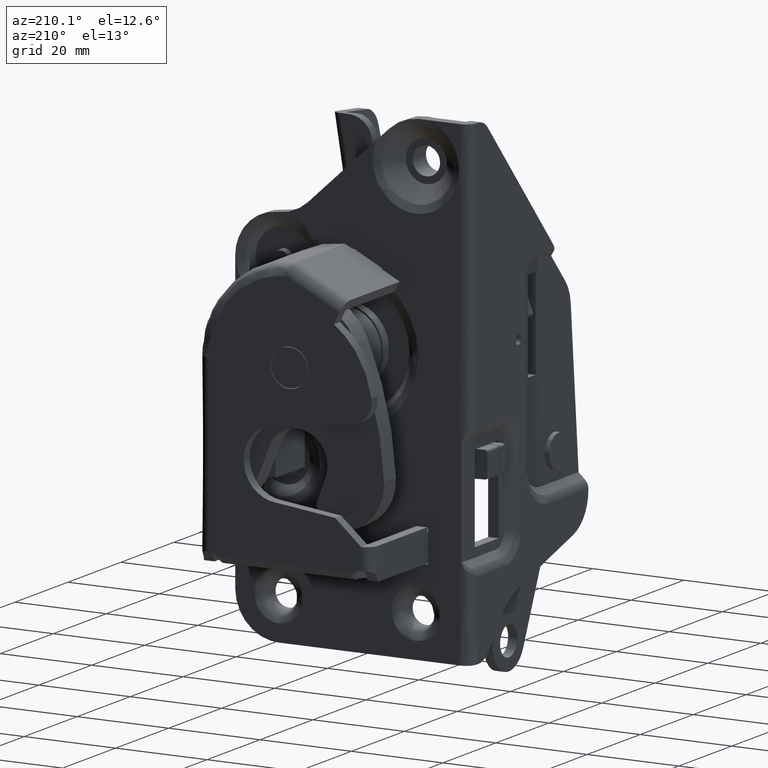
[diagram: clean part render]
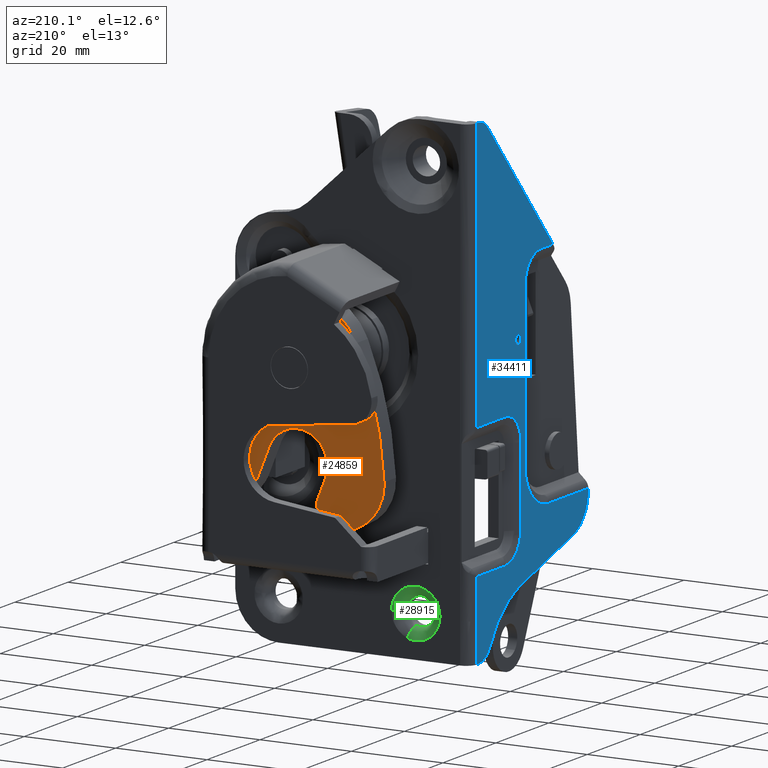
[diagram: same view with three faces highlighted in distinct colors, each labeled with its STEP entity id]
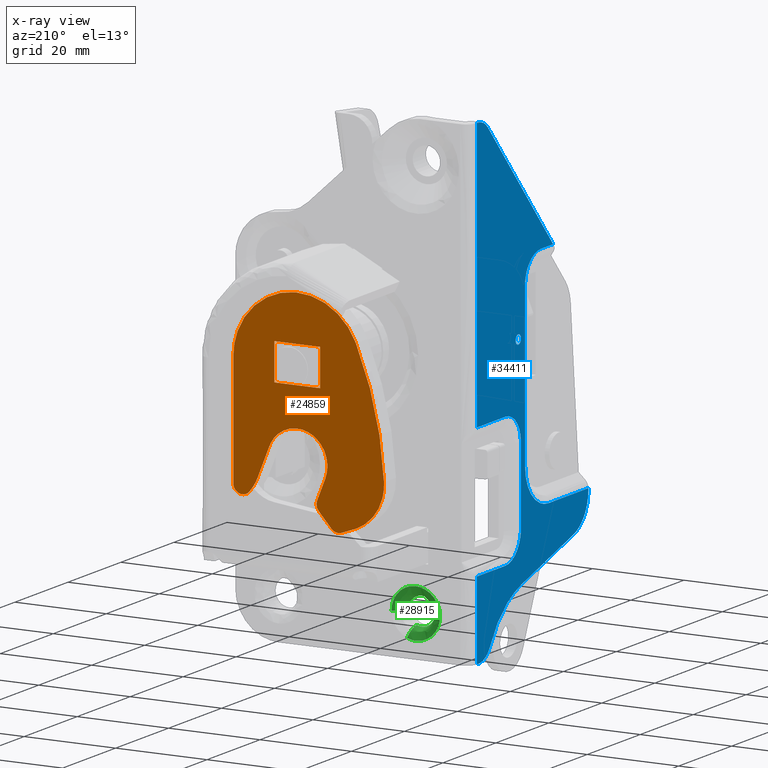
[diagram: x-ray of the same camera — body ghosted, the three highlighted faces saturated]
A machine part, auxiliary view with three faces highlighted in distinct colors.
The next image is the same camera in x-ray (body ghosted, the three faces saturated) — at least one of them is partly hidden behind the body in this view.
Their STEP definitions:

[orange] entity #24859 — the highlighted face is a freeform B-spline surface patch.
#24431=CARTESIAN_POINT('',(32.500000000000000,53.0,20.0));
#24432=VERTEX_POINT('',#24431);
#24433=CARTESIAN_POINT('',(22.499999999999702,53.0,20.0));
#24434=VERTEX_POINT('',#24433);
#24435=CARTESIAN_POINT('',(32.500000000000000,53.0,20.0));
#24436=CARTESIAN_POINT('',(22.499999999999702,53.0,20.0));
#24437=QUASI_UNIFORM_CURVE('',1,(#24435,#24436),.UNSPECIFIED.,.F.,.U.);
#24438=EDGE_CURVE('',#24432,#24434,#24437,.T.);
#24466=CARTESIAN_POINT('',(32.500000000000000,53.0,28.0));
#24467=VERTEX_POINT('',#24466);
#24468=CARTESIAN_POINT('',(32.500000000000000,53.0,28.0));
#24469=CARTESIAN_POINT('',(32.500000000000000,53.0,20.0));
#24470=QUASI_UNIFORM_CURVE('',1,(#24468,#24469),.UNSPECIFIED.,.F.,.U.);
#24471=EDGE_CURVE('',#24467,#24432,#24470,.T.);
#24488=CARTESIAN_POINT('',(22.499999999999702,53.0,28.0));
#24489=VERTEX_POINT('',#24488);
#24490=CARTESIAN_POINT('',(22.499999999999702,53.0,28.0));
#24491=CARTESIAN_POINT('',(32.500000000000000,53.0,28.0));
#24492=QUASI_UNIFORM_CURVE('',1,(#24490,#24491),.UNSPECIFIED.,.F.,.U.);
#24493=EDGE_CURVE('',#24489,#24467,#24492,.T.);
#24517=CARTESIAN_POINT('',(22.499999999999702,53.0,20.0));
#24518=CARTESIAN_POINT('',(22.499999999999702,53.0,28.0));
#24519=QUASI_UNIFORM_CURVE('',1,(#24517,#24518),.UNSPECIFIED.,.F.,.U.);
#24520=EDGE_CURVE('',#24434,#24489,#24519,.T.);
#24676=CARTESIAN_POINT('',(43.148309573504037,53.0,-9.950300449224912));
#24677=CARTESIAN_POINT('',(6.851996135934078,53.0,-9.950300449224912));
#24678=CARTESIAN_POINT('',(43.148309573504037,53.0,40.276940169294598));
#24679=CARTESIAN_POINT('',(6.851996135934078,53.0,40.276940169294598));
#24680=B_SPLINE_SURFACE_WITH_KNOTS('',1,1,((#24676,#24678),(#24677,#24679)),.UNSPECIFIED.,.F.,.F.,.U.,(2,2),(2,2),(0.0,36.296313437569957),(0.0,50.227240618519509),.UNSPECIFIED.);
#24681=CARTESIAN_POINT('',(41.499751967376163,53.0,-0.503891432037531));
#24682=VERTEX_POINT('',#24681);
#24683=CARTESIAN_POINT('',(38.012937578485698,53.0,-1.837874537813335));
#24684=VERTEX_POINT('',#24683);
#24685=CARTESIAN_POINT('',(41.499751967376163,53.0,-0.503891432037531));
#24686=CARTESIAN_POINT('',(41.499485573628490,52.999999999999957,-0.704487366035241));
#24687=CARTESIAN_POINT('',(41.439750642586603,53.000000000000142,-1.092992322696456));
#24688=CARTESIAN_POINT('',(41.222326875520331,52.999999999999822,-1.550456856910513));
#24689=CARTESIAN_POINT('',(40.941174896874173,53.000000000000242,-1.905663287531373));
#24690=CARTESIAN_POINT('',(40.604572066961190,52.999999999999780,-2.191502706318995));
#24691=CARTESIAN_POINT('',(40.185183905683537,52.999999999999950,-2.398989659552805));
#24692=CARTESIAN_POINT('',(39.767371692446353,53.000000000000021,-2.494284344882381));
#24693=CARTESIAN_POINT('',(39.352407930725533,52.999999999999972,-2.509357576633300));
#24694=CARTESIAN_POINT('',(38.879339919959101,53.000000000000099,-2.427975108108752));
#24695=CARTESIAN_POINT('',(38.398285884322263,52.999999999999730,-2.199500541805311));
#24696=CARTESIAN_POINT('',(38.121915365240682,53.000000000000043,-1.959065389087017));
#24697=CARTESIAN_POINT('',(38.012937578485698,53.0,-1.837874537813335));
#24698=B_SPLINE_CURVE_WITH_KNOTS('',3,(#24685,#24686,#24687,#24688,#24689,#24690,#24691,#24692,#24693,#24694,#24695,#24696,#24697),.UNSPECIFIED.,.F.,.U.,(4,1,1,1,1,1,1,1,1,1,4),(0.000000489607355,0.601768107266643,1.165998231107237,1.504535542936363,1.955915029768040,2.482399046862219,2.896179330713022,3.234688506768121,3.723678971490753,4.325490028354812,4.814446101880039),.UNSPECIFIED.);
#24699=EDGE_CURVE('',#24682,#24684,#24698,.T.);
#24700=ORIENTED_EDGE('',*,*,#24699,.T.);
#24701=CARTESIAN_POINT('',(36.168630926051200,53.0,1.122857875847806));
#24702=VERTEX_POINT('',#24701);
#24703=CARTESIAN_POINT('',(38.012937578485698,53.0,-1.837874537813335));
#24704=CARTESIAN_POINT('',(37.231027742455510,53.000000000000057,-0.969183534563052));
#24705=CARTESIAN_POINT('',(36.603341346630117,52.999999999999801,0.037890999771157));
#24706=CARTESIAN_POINT('',(36.168630926051200,53.0,1.122857875847806));
#24707=B_SPLINE_CURVE_WITH_KNOTS('',3,(#24703,#24704,#24705,#24706),.UNSPECIFIED.,.F.,.U.,(4,4),(4.512649E-009,3.506160840604002),.UNSPECIFIED.);
#24708=EDGE_CURVE('',#24684,#24702,#24707,.T.);
#24709=ORIENTED_EDGE('',*,*,#24708,.T.);
#24710=CARTESIAN_POINT('',(33.625128187699097,53.0,7.459270188886670));
#24711=VERTEX_POINT('',#24710);
#24712=CARTESIAN_POINT('',(33.625128187699097,53.0,7.459270188886670));
#24713=CARTESIAN_POINT('',(36.168630926051200,53.0,1.122857875847806));
#24714=QUASI_UNIFORM_CURVE('',1,(#24712,#24713),.UNSPECIFIED.,.F.,.U.);
#24715=EDGE_CURVE('',#24711,#24702,#24714,.T.);
#24716=ORIENTED_EDGE('',*,*,#24715,.F.);
#24717=CARTESIAN_POINT('',(25.040095848606480,53.0,11.125535285069830));
#24718=VERTEX_POINT('',#24717);
#24719=CARTESIAN_POINT('',(25.040095848606480,53.0,11.125535285069830));
#24720=CARTESIAN_POINT('',(25.440995803666230,53.000000000000092,11.286582299308000));
#24721=CARTESIAN_POINT('',(26.274562117857890,52.999999999999922,11.529521251240389));
#24722=CARTESIAN_POINT('',(27.490884343855839,52.999999999999979,11.636008932155310));
#24723=CARTESIAN_POINT('',(28.596951055041561,53.000000000000021,11.535410437828890));
#24724=CARTESIAN_POINT('',(29.805569492465441,53.000000000000298,11.234560309063410));
#24725=CARTESIAN_POINT('',(30.984300826595639,52.999999999999453,10.670214868728699));
#24726=CARTESIAN_POINT('',(32.027785127897829,52.999999999999837,9.847553906115428));
#24727=CARTESIAN_POINT('',(32.932549935151037,52.999999999999829,8.839650501675141));
#24728=CARTESIAN_POINT('',(33.404025960335957,53.000000000000327,8.010667577006585));
#24729=CARTESIAN_POINT('',(33.625128187699097,53.0,7.459270188886670));
#24730=B_SPLINE_CURVE_WITH_KNOTS('',3,(#24719,#24720,#24721,#24722,#24723,#24724,#24725,#24726,#24727,#24728,#24729),.UNSPECIFIED.,.F.,.U.,(4,1,1,1,1,1,1,1,4),(0.000000125248302,1.296110581487044,2.592240387477370,3.645357230007305,4.617434418661775,6.318578690973805,7.533691527198394,8.586809272242412,10.368958025304631),.UNSPECIFIED.);
#24731=EDGE_CURVE('',#24718,#24711,#24730,.T.);
#24732=ORIENTED_EDGE('',*,*,#24731,.F.);
#24733=CARTESIAN_POINT('',(21.375000000003649,53.0,2.539999999990745));
#24734=VERTEX_POINT('',#24733);
#24735=CARTESIAN_POINT('',(21.375000000003649,53.0,2.539999999990745));
#24736=CARTESIAN_POINT('',(21.213893037561778,53.000000000000021,2.940877183703295));
#24737=CARTESIAN_POINT('',(21.001267633021602,52.999999999999957,3.670220990804810));
#24738=CARTESIAN_POINT('',(20.865038241439638,53.000000000000078,4.881004941470926));
#24739=CARTESIAN_POINT('',(20.934864274245950,53.000000000000007,5.937527794784620));
#24740=CARTESIAN_POINT('',(21.232909773589519,52.999999999999687,7.201447985714461));
#24741=CARTESIAN_POINT('',(21.768052518944248,53.000000000000533,8.393709439467564));
#24742=CARTESIAN_POINT('',(22.710866429035871,52.999999999999318,9.620930553057962));
#24743=CARTESIAN_POINT('',(23.796851192857140,53.000000000000881,10.526005769052540));
#24744=CARTESIAN_POINT('',(24.639168184732188,52.999999999998963,10.964579548441071));
#24745=CARTESIAN_POINT('',(25.040095848606480,53.0,11.125535285069830));
#24746=B_SPLINE_CURVE_WITH_KNOTS('',3,(#24735,#24736,#24737,#24738,#24739,#24740,#24741,#24742,#24743,#24744,#24745),.UNSPECIFIED.,.F.,.U.,(4,1,1,1,1,1,1,1,4),(0.000000125232685,1.296111184565200,2.268204998380970,3.645358926280559,4.455448815950675,6.156540773185223,7.533695032780052,9.072865582662393,10.368962850204900),.UNSPECIFIED.);
#24747=EDGE_CURVE('',#24734,#24718,#24746,.T.);
#24748=ORIENTED_EDGE('',*,*,#24747,.F.);
#24749=CARTESIAN_POINT('',(23.136165442745050,53.0,-1.845411962769285));
#24750=VERTEX_POINT('',#24749);
#24751=CARTESIAN_POINT('',(23.136165442745050,53.0,-1.845411962769285));
#24752=CARTESIAN_POINT('',(21.375000000003649,53.0,2.539999999990745));
#24753=QUASI_UNIFORM_CURVE('',1,(#24751,#24752),.UNSPECIFIED.,.F.,.U.);
#24754=EDGE_CURVE('',#24750,#24734,#24753,.T.);
#24755=ORIENTED_EDGE('',*,*,#24754,.F.);
#24756=CARTESIAN_POINT('',(22.768235455744851,53.0,-3.927105898154995));
#24757=VERTEX_POINT('',#24756);
#24758=CARTESIAN_POINT('',(23.136165442745050,53.0,-1.845411962769285));
#24759=CARTESIAN_POINT('',(23.201043884159500,53.000000000000043,-2.006867714207879));
#24760=CARTESIAN_POINT('',(23.300005418801600,52.999999999999680,-2.392171068693199));
#24761=CARTESIAN_POINT('',(23.274991972741301,53.000000000000853,-2.956045741223040));
#24762=CARTESIAN_POINT('',(23.088447858835838,52.999999999998721,-3.497506132747017));
#24763=CARTESIAN_POINT('',(22.892310642823499,53.000000000000789,-3.789055009304270));
#24764=CARTESIAN_POINT('',(22.768235455744851,53.0,-3.927105898154995));
#24765=B_SPLINE_CURVE_WITH_KNOTS('',3,(#24758,#24759,#24760,#24761,#24762,#24763,#24764),.UNSPECIFIED.,.F.,.U.,(4,1,1,1,4),(0.000000102084377,0.522024654042086,1.183245412588157,1.670482768252887,2.227310323642777),.UNSPECIFIED.);
#24766=EDGE_CURVE('',#24750,#24757,#24765,.T.);
#24767=ORIENTED_EDGE('',*,*,#24766,.T.);
#24768=CARTESIAN_POINT('',(20.003297433442452,53.0,-7.005789945134710));
#24769=VERTEX_POINT('',#24768);
#24770=CARTESIAN_POINT('',(20.003297433442452,53.0,-7.005789945134710));
#24771=CARTESIAN_POINT('',(22.768235455744851,53.0,-3.927105898154995));
#24772=QUASI_UNIFORM_CURVE('',1,(#24770,#24771),.UNSPECIFIED.,.F.,.U.);
#24773=EDGE_CURVE('',#24769,#24757,#24772,.T.);
#24774=ORIENTED_EDGE('',*,*,#24773,.F.);
#24775=CARTESIAN_POINT('',(17.935639190464251,53.0,-7.583587546461810));
#24776=VERTEX_POINT('',#24775);
#24777=CARTESIAN_POINT('',(20.003297433442452,53.0,-7.005789945134710));
#24778=CARTESIAN_POINT('',(19.853544623207110,53.000000000000142,-7.172740057526837));
#24779=CARTESIAN_POINT('',(19.497106288526670,52.999999999999979,-7.455333931943819));
#24780=CARTESIAN_POINT('',(18.773490528913740,52.999999999999901,-7.707036849787813));
#24781=CARTESIAN_POINT('',(18.229275571251939,53.000000000000142,-7.673024194674612));
#24782=CARTESIAN_POINT('',(17.935639190464251,53.0,-7.583587546461810));
#24783=B_SPLINE_CURVE_WITH_KNOTS('',3,(#24777,#24778,#24779,#24780,#24781,#24782),.UNSPECIFIED.,.F.,.U.,(4,1,1,4),(0.000000111237388,0.672783724510564,1.345535506008562,2.266200156903591),.UNSPECIFIED.);
#24784=EDGE_CURVE('',#24769,#24776,#24783,.T.);
#24785=ORIENTED_EDGE('',*,*,#24784,.T.);
#24786=CARTESIAN_POINT('',(14.586906549150079,53.0,-6.368602495498849));
#24787=VERTEX_POINT('',#24786);
#24788=CARTESIAN_POINT('',(17.935639190464251,53.0,-7.583587546461810));
#24789=CARTESIAN_POINT('',(16.798606411638779,52.999999999999993,-7.239276718220203));
#24790=CARTESIAN_POINT('',(15.680187863347911,53.000000000000028,-6.833498811009934));
#24791=CARTESIAN_POINT('',(14.586906549150079,53.0,-6.368602495498849));
#24792=B_SPLINE_CURVE_WITH_KNOTS('',3,(#24788,#24789,#24790,#24791),.UNSPECIFIED.,.F.,.U.,(4,4),(2.796225E-010,3.564069262987653),.UNSPECIFIED.);
#24793=EDGE_CURVE('',#24776,#24787,#24792,.T.);
#24794=ORIENTED_EDGE('',*,*,#24793,.T.);
#24795=CARTESIAN_POINT('',(8.512113658407371,53.0,3.326774216906520));
#24796=VERTEX_POINT('',#24795);
#24797=CARTESIAN_POINT('',(14.586906549150079,53.0,-6.368602495498849));
#24798=CARTESIAN_POINT('',(13.827856150766889,52.999999999999908,-6.046064370153336));
#24799=CARTESIAN_POINT('',(12.473351324495500,53.000000000000099,-5.259766862318491));
#24800=CARTESIAN_POINT('',(10.968370419511629,53.000000000000142,-3.832486363659306));
#24801=CARTESIAN_POINT('',(9.830887201970317,52.999999999999623,-2.260280396800523));
#24802=CARTESIAN_POINT('',(9.019888740532730,53.000000000000327,-0.562257886658247));
#24803=CARTESIAN_POINT('',(8.540769916708145,52.999999999999517,1.388110949948139));
#24804=CARTESIAN_POINT('',(8.480783977232052,53.000000000000732,2.693152962511076));
#24805=CARTESIAN_POINT('',(8.512113658407371,53.0,3.326774216906520));
#24806=B_SPLINE_CURVE_WITH_KNOTS('',3,(#24797,#24798,#24799,#24800,#24801,#24802,#24803,#24804,#24805),.UNSPECIFIED.,.F.,.U.,(4,1,1,1,1,1,4),(0.000000063146867,2.474157980997768,4.662856866463048,6.185366897034751,8.278907017000208,10.277292042997731,12.180476977204901),.UNSPECIFIED.);
#24807=EDGE_CURVE('',#24787,#24796,#24806,.T.);
#24808=ORIENTED_EDGE('',*,*,#24807,.T.);
#24809=CARTESIAN_POINT('',(14.665646308671921,53.0,29.592664486145850));
#24810=VERTEX_POINT('',#24809);
#24811=CARTESIAN_POINT('',(8.512113658407371,53.0,3.326774216906520));
#24812=CARTESIAN_POINT('',(8.668624406101245,53.000000000000270,6.501599669404457));
#24813=CARTESIAN_POINT('',(9.210939635868076,52.999999999999822,11.283972621263210));
#24814=CARTESIAN_POINT('',(11.087252294422060,53.000000000000142,20.133596900510788));
#24815=CARTESIAN_POINT('',(12.972144891970380,52.999999999999943,25.707443463126658));
#24816=CARTESIAN_POINT('',(14.665646308671921,53.0,29.592664486145850));
#24817=B_SPLINE_CURVE_WITH_KNOTS('',3,(#24811,#24812,#24813,#24814,#24815,#24816),.UNSPECIFIED.,.F.,.U.,(4,1,1,4),(2.005724E-009,9.536021457039510,14.409980894304500,27.124678543219989),.UNSPECIFIED.);
#24818=EDGE_CURVE('',#24796,#24810,#24817,.T.);
#24819=ORIENTED_EDGE('',*,*,#24818,.T.);
#24820=CARTESIAN_POINT('',(41.499978997116749,53.0,23.999690497997150));
#24821=VERTEX_POINT('',#24820);
#24822=CARTESIAN_POINT('',(14.665646308671921,53.0,29.592664486145850));
#24823=CARTESIAN_POINT('',(14.983772891737781,53.000000000000043,30.322787979142280));
#24824=CARTESIAN_POINT('',(15.840130394105110,53.000000000000007,31.904355112071460));
#24825=CARTESIAN_POINT('',(17.557268574444041,53.000000000000021,33.992229411302098));
#24826=CARTESIAN_POINT('',(19.579591446280851,52.999999999999993,35.626939636473743));
#24827=CARTESIAN_POINT('',(21.628092938479949,52.999999999999829,36.770527020510222));
#24828=CARTESIAN_POINT('',(23.501376694288791,53.000000000000071,37.463904984099038));
#24829=CARTESIAN_POINT('',(25.303524635545180,53.000000000000348,37.859005727803243));
#24830=CARTESIAN_POINT('',(27.040284362904949,52.999999999999822,38.030664563432303));
#24831=CARTESIAN_POINT('',(28.935518265535990,53.000000000000107,37.974767053815377));
#24832=CARTESIAN_POINT('',(31.148031344091969,52.999999999999872,37.587125023512343));
#24833=CARTESIAN_POINT('',(33.266349063252143,53.000000000000178,36.827860120259963));
#24834=CARTESIAN_POINT('',(35.313694150842267,53.000000000000007,35.684035158097430));
#24835=CARTESIAN_POINT('',(36.808605691134233,52.999999999999297,34.513856929650800));
#24836=CARTESIAN_POINT('',(38.131377309474182,53.000000000000270,33.158683278752122));
#24837=CARTESIAN_POINT('',(39.105276692289173,52.999999999999773,31.893376907198029));
#24838=CARTESIAN_POINT('',(40.068310781504799,53.000000000000163,30.262205363785860));
#24839=CARTESIAN_POINT('',(40.807269558794530,52.999999999999950,28.514397011961460));
#24840=CARTESIAN_POINT('',(41.364174201895111,53.000000000000050,26.339187145656261));
#24841=CARTESIAN_POINT('',(41.500075947329798,52.999999999999993,24.845901338814539));
#24842=CARTESIAN_POINT('',(41.499978997116749,53.0,23.999690497997150));
#24843=B_SPLINE_CURVE_WITH_KNOTS('',3,(#24822,#24823,#24824,#24825,#24826,#24827,#24828,#24829,#24830,#24831,#24832,#24833,#24834,#24835,#24836,#24837,#24838,#24839,#24840,#24841,#24842),.UNSPECIFIED.,.F.,.U.,(4,1,1,1,1,1,1,1,1,1,1,1,1,1,1,1,1,1,4),(0.000000046161020,2.389278786957611,5.375952291610723,8.063955086315978,10.154633021809900,12.394640389001729,14.037319967721050,15.679988300475481,17.621327861275478,19.711879011018159,22.399854026831889,24.341232182262200,26.730555647419639,28.074550127396961,30.015883047309661,31.509226579795641,33.749208440383207,35.690550937312267,38.229179324801947),.UNSPECIFIED.);
#24844=EDGE_CURVE('',#24810,#24821,#24843,.T.);
#24845=ORIENTED_EDGE('',*,*,#24844,.T.);
#24846=CARTESIAN_POINT('',(41.499751967376163,53.0,-0.503891432037531));
#24847=CARTESIAN_POINT('',(41.499978997116749,53.0,23.999690497997150));
#24848=QUASI_UNIFORM_CURVE('',1,(#24846,#24847),.UNSPECIFIED.,.F.,.U.);
#24849=EDGE_CURVE('',#24682,#24821,#24848,.T.);
#24850=ORIENTED_EDGE('',*,*,#24849,.F.);
#24851=EDGE_LOOP('',(#24700,#24709,#24716,#24732,#24748,#24755,#24767,#24774,#24785,#24794,#24808,#24819,#24845,#24850));
#24852=FACE_OUTER_BOUND('',#24851,.T.);
#24853=ORIENTED_EDGE('',*,*,#24438,.F.);
#24854=ORIENTED_EDGE('',*,*,#24471,.F.);
#24855=ORIENTED_EDGE('',*,*,#24493,.F.);
#24856=ORIENTED_EDGE('',*,*,#24520,.F.);
#24857=EDGE_LOOP('',(#24853,#24854,#24855,#24856));
#24858=FACE_BOUND('',#24857,.T.);
#24859=ADVANCED_FACE('',(#24852,#24858),#24680,.T.);

[blue] entity #34411 — the highlighted face is a freeform B-spline surface patch.
#27833=CARTESIAN_POINT('',(1.455207E-016,16.283349377004019,25.697431289393080));
#27834=VERTEX_POINT('',#27833);
#27840=CARTESIAN_POINT('',(0.0,17.0,26.0));
#27841=VERTEX_POINT('',#27840);
#27842=CARTESIAN_POINT('',(0.0,17.0,26.0));
#27843=CARTESIAN_POINT('',(2.873413E-017,16.858492049525260,26.000186978276201));
#27844=CARTESIAN_POINT('',(8.277915E-017,16.592334760710830,25.942465221602909));
#27845=CARTESIAN_POINT('',(1.278525E-016,16.370360692246589,25.786984103464039));
#27846=CARTESIAN_POINT('',(1.455207E-016,16.283349377004019,25.697431289393080));
#27847=B_SPLINE_CURVE_WITH_KNOTS('',3,(#27842,#27843,#27844,#27845,#27846),.UNSPECIFIED.,.F.,.U.,(4,1,4),(0.000000076720026,0.424452382708862,0.799009166430213),.UNSPECIFIED.);
#27848=EDGE_CURVE('',#27841,#27834,#27847,.T.);
#27850=CARTESIAN_POINT('',(0.0,17.999999999995609,25.000002963363141));
#27851=VERTEX_POINT('',#27850);
#27852=CARTESIAN_POINT('',(0.0,17.999999999995609,25.000002963363141));
#27853=CARTESIAN_POINT('',(0.0,18.000269594807641,25.155504236123662));
#27854=CARTESIAN_POINT('',(0.0,17.939617575622691,25.408849418742939));
#27855=CARTESIAN_POINT('',(0.0,17.711026397325000,25.733505854830231));
#27856=CARTESIAN_POINT('',(0.0,17.400843351994830,25.946296596475879));
#27857=CARTESIAN_POINT('',(0.0,17.130906582319518,26.000122289606619));
#27858=CARTESIAN_POINT('',(0.0,17.0,26.0));
#27859=B_SPLINE_CURVE_WITH_KNOTS('',3,(#27852,#27853,#27854,#27855,#27856,#27857,#27858),.UNSPECIFIED.,.F.,.U.,(4,1,1,1,4),(0.000000282026231,0.466350618102774,0.760913660404578,1.178125643045731,1.570834074147694),.UNSPECIFIED.);
#27860=EDGE_CURVE('',#27851,#27841,#27859,.T.);
#27862=CARTESIAN_POINT('',(0.0,17.0,24.0));
#27863=VERTEX_POINT('',#27862);
#27864=CARTESIAN_POINT('',(0.0,17.0,24.0));
#27865=CARTESIAN_POINT('',(0.0,17.155501565249029,23.999730771700900));
#27866=CARTESIAN_POINT('',(0.0,17.408847207344831,24.060383823132309));
#27867=CARTESIAN_POINT('',(0.0,17.733503770561381,24.288976190310681));
#27868=CARTESIAN_POINT('',(0.0,17.946295715579001,24.599158370337641));
#27869=CARTESIAN_POINT('',(0.0,18.000122844790980,24.869096079595220));
#27870=CARTESIAN_POINT('',(0.0,17.999999999995609,25.000002963363141));
#27871=B_SPLINE_CURVE_WITH_KNOTS('',3,(#27864,#27865,#27866,#27867,#27868,#27869,#27870),.UNSPECIFIED.,.F.,.U.,(4,1,1,1,4),(0.000000277980681,0.466351605813111,0.760915272179950,1.178128146651018,1.570837414631990),.UNSPECIFIED.);
#27872=EDGE_CURVE('',#27863,#27851,#27871,.T.);
#27874=CARTESIAN_POINT('',(2.844947E-016,16.262722046239741,24.324409373258199));
#27875=VERTEX_POINT('',#27874);
#27876=CARTESIAN_POINT('',(2.844947E-016,16.262722046239741,24.324409373258199));
#27877=CARTESIAN_POINT('',(2.462778E-016,16.361762276393168,24.216003727267172));
#27878=CARTESIAN_POINT('',(1.565833E-016,16.594208766350949,24.054468460476748));
#27879=CARTESIAN_POINT('',(4.999307E-017,16.870441194921220,23.999883075426279));
#27880=CARTESIAN_POINT('',(0.0,17.0,24.0));
#27881=B_SPLINE_CURVE_WITH_KNOTS('',3,(#27876,#27877,#27878,#27879,#27880),.UNSPECIFIED.,.F.,.U.,(4,1,4),(0.000000073290278,0.440417405674158,0.829054987025605),.UNSPECIFIED.);
#27882=EDGE_CURVE('',#27875,#27863,#27881,.T.);
#27959=CARTESIAN_POINT('',(0.0,16.000000000004391,24.999997036636859));
#27960=VERTEX_POINT('',#27959);
#27961=CARTESIAN_POINT('',(0.0,16.000000000004391,24.999997036636859));
#27962=CARTESIAN_POINT('',(4.555574E-017,15.999937977221650,24.891815979399230));
#27963=CARTESIAN_POINT('',(1.496608E-016,16.040525474987881,24.644598184487648));
#27964=CARTESIAN_POINT('',(2.413570E-016,16.168598527164541,24.426847842197951));
#27965=CARTESIAN_POINT('',(2.844947E-016,16.262722046239741,24.324409373258199));
#27966=B_SPLINE_CURVE_WITH_KNOTS('',3,(#27961,#27962,#27963,#27964,#27965),.UNSPECIFIED.,.F.,.U.,(4,1,4),(0.000000053011657,0.324534396198428,0.741778737818774),.UNSPECIFIED.);
#27967=EDGE_CURVE('',#27960,#27875,#27966,.T.);
#27969=CARTESIAN_POINT('',(1.455207E-016,16.283349377004019,25.697431289393080));
#27970=CARTESIAN_POINT('',(1.274982E-016,16.199167193740269,25.611055114596759));
#27971=CARTESIAN_POINT('',(8.217032E-017,16.053623140645481,25.393812846230190));
#27972=CARTESIAN_POINT('',(2.852109E-017,15.999837131666119,25.136689347468931));
#27973=CARTESIAN_POINT('',(0.0,16.000000000004391,24.999997036636859));
#27974=B_SPLINE_CURVE_WITH_KNOTS('',3,(#27969,#27970,#27971,#27972,#27973),.UNSPECIFIED.,.F.,.U.,(4,1,4),(0.000000064622654,0.361814059088789,0.771828994863041),.UNSPECIFIED.);
#27975=EDGE_CURVE('',#27834,#27960,#27974,.T.);
#30251=CARTESIAN_POINT('',(0.0,32.700000000000003,10.952691193458120));
#30252=VERTEX_POINT('',#30251);
#30322=CARTESIAN_POINT('',(0.0,32.700000000000003,-17.952691193458101));
#30323=VERTEX_POINT('',#30322);
#30421=CARTESIAN_POINT('',(0.0,5.500000000000000,-8.952691193458040));
#30422=VERTEX_POINT('',#30421);
#30433=CARTESIAN_POINT('',(0.0,-9.450205466200819,-8.952691193458032));
#30434=VERTEX_POINT('',#30433);
#30435=CARTESIAN_POINT('',(0.0,5.500000000000000,-8.952691193458040));
#30436=CARTESIAN_POINT('',(0.0,-9.450205466200819,-8.952691193458032));
#30437=QUASI_UNIFORM_CURVE('',1,(#30435,#30436),.UNSPECIFIED.,.F.,.U.);
#30438=EDGE_CURVE('',#30422,#30434,#30437,.T.);
#30484=CARTESIAN_POINT('',(0.0,14.452691193458120,8.526513E-014));
#30485=VERTEX_POINT('',#30484);
#30497=CARTESIAN_POINT('',(0.0,14.452691193458120,8.526513E-014));
#30498=CARTESIAN_POINT('',(0.0,14.452875383295581,-0.732455861815711));
#30499=CARTESIAN_POINT('',(0.0,14.285451797608671,-2.087372852896231));
#30500=CARTESIAN_POINT('',(0.0,13.654585618319530,-3.817007402526729));
#30501=CARTESIAN_POINT('',(0.0,12.738597282024729,-5.366776401270998));
#30502=CARTESIAN_POINT('',(0.0,11.607360654837590,-6.630454026890755));
#30503=CARTESIAN_POINT('',(0.0,10.278695607281540,-7.615693588270839));
#30504=CARTESIAN_POINT('',(0.0,8.974875283344591,-8.292174947625036));
#30505=CARTESIAN_POINT('',(0.0,7.404282520829739,-8.811062157757601));
#30506=CARTESIAN_POINT('',(0.0,6.195823495053707,-8.952843153745933));
#30507=CARTESIAN_POINT('',(0.0,5.500000000000000,-8.952691193458040));
#30508=B_SPLINE_CURVE_WITH_KNOTS('',3,(#30497,#30498,#30499,#30500,#30501,#30502,#30503,#30504,#30505,#30506,#30507),.UNSPECIFIED.,.F.,.U.,(4,1,1,1,1,1,1,1,4),(0.000000091347363,2.197323560099042,4.065072293060903,5.493365278600024,7.580784549664670,9.118918606276500,10.437339500861290,11.975495456620189,14.062942680058089),.UNSPECIFIED.);
#30509=EDGE_CURVE('',#30485,#30422,#30508,.T.);
#30543=CARTESIAN_POINT('',(0.0,14.452691193458120,35.0));
#30544=VERTEX_POINT('',#30543);
#30555=CARTESIAN_POINT('',(0.0,14.452691193458120,35.0));
#30556=CARTESIAN_POINT('',(0.0,14.452691193458120,8.526513E-014));
#30557=QUASI_UNIFORM_CURVE('',1,(#30555,#30556),.UNSPECIFIED.,.F.,.U.);
#30558=EDGE_CURVE('',#30544,#30485,#30557,.T.);
#30586=CARTESIAN_POINT('',(0.0,8.500000000000000,40.952691193458101));
#30587=VERTEX_POINT('',#30586);
#30599=CARTESIAN_POINT('',(0.0,8.500000000000000,40.952691193458101));
#30600=CARTESIAN_POINT('',(0.0,8.865242683024768,40.952702107604587));
#30601=CARTESIAN_POINT('',(0.0,9.741891591519034,40.871882839532660));
#30602=CARTESIAN_POINT('',(0.0,10.909873488027880,40.493949378207567));
#30603=CARTESIAN_POINT('',(0.0,12.071247616431121,39.817018423484569));
#30604=CARTESIAN_POINT('',(0.0,13.107552738725991,38.878026018196522));
#30605=CARTESIAN_POINT('',(0.0,13.931194368705400,37.594792403637271));
#30606=CARTESIAN_POINT('',(0.0,14.368766189304560,36.241851050764112));
#30607=CARTESIAN_POINT('',(0.0,14.452722795457341,35.389598871030699));
#30608=CARTESIAN_POINT('',(0.0,14.452691193458120,35.0));
#30609=B_SPLINE_CURVE_WITH_KNOTS('',3,(#30599,#30600,#30601,#30602,#30603,#30604,#30605,#30606,#30607,#30608),.UNSPECIFIED.,.F.,.U.,(4,1,1,1,1,1,1,4),(0.000000123463447,1.095755485875690,2.629842329316806,3.652574226585773,5.113567313831557,6.793741497036898,8.181715368752371,9.350524131440530),.UNSPECIFIED.);
#30610=EDGE_CURVE('',#30587,#30544,#30609,.T.);
#30645=CARTESIAN_POINT('',(0.0,3.857822074112350,40.952691193458101));
#30646=VERTEX_POINT('',#30645);
#30660=CARTESIAN_POINT('',(0.0,3.857822074112350,40.952691193458101));
#30661=CARTESIAN_POINT('',(0.0,8.500000000000000,40.952691193458101));
#30662=QUASI_UNIFORM_CURVE('',1,(#30660,#30661),.UNSPECIFIED.,.F.,.U.);
#30663=EDGE_CURVE('',#30646,#30587,#30662,.T.);
#30688=CARTESIAN_POINT('',(0.0,22.0,-17.952691193458101));
#30689=VERTEX_POINT('',#30688);
#30690=CARTESIAN_POINT('',(0.0,32.700000000000003,-17.952691193458101));
#30691=CARTESIAN_POINT('',(0.0,22.0,-17.952691193458101));
#30692=QUASI_UNIFORM_CURVE('',1,(#30690,#30691),.UNSPECIFIED.,.F.,.U.);
#30693=EDGE_CURVE('',#30323,#30689,#30692,.T.);
#30734=CARTESIAN_POINT('',(0.0,16.047308806541899,-12.0));
#30735=VERTEX_POINT('',#30734);
#30760=CARTESIAN_POINT('',(0.0,22.0,-17.952691193458101));
#30761=CARTESIAN_POINT('',(0.0,21.537344614005370,-17.952796007407880));
#30762=CARTESIAN_POINT('',(0.0,20.733837676364349,-17.858515853636149));
#30763=CARTESIAN_POINT('',(0.0,19.666334504652031,-17.505845389226440));
#30764=CARTESIAN_POINT('',(0.0,18.672077934247302,-16.982289724836729));
#30765=CARTESIAN_POINT('',(0.0,17.738785245760880,-16.225957477723369));
#30766=CARTESIAN_POINT('',(0.0,16.964615558353639,-15.246281032526429));
#30767=CARTESIAN_POINT('',(0.0,16.441576690672459,-14.222858455187110));
#30768=CARTESIAN_POINT('',(0.0,16.121677692287850,-13.144437969753460));
#30769=CARTESIAN_POINT('',(0.0,16.047261438240511,-12.389604147424571));
#30770=CARTESIAN_POINT('',(0.0,16.047308806541899,-12.0));
#30771=B_SPLINE_CURVE_WITH_KNOTS('',3,(#30760,#30761,#30762,#30763,#30764,#30765,#30766,#30767,#30768,#30769,#30770),.UNSPECIFIED.,.F.,.U.,(4,1,1,1,1,1,1,1,4),(0.000000123464430,1.387947787413222,2.410684327593532,3.360352761033844,4.748272259291795,5.990173454358044,7.085946882020208,8.181715368752183,9.350524131440515),.UNSPECIFIED.);
#30772=EDGE_CURVE('',#30689,#30735,#30771,.T.);
#30793=CARTESIAN_POINT('',(0.0,16.047308806541899,5.0));
#30794=VERTEX_POINT('',#30793);
#30810=CARTESIAN_POINT('',(0.0,16.047308806541899,-12.0));
#30811=CARTESIAN_POINT('',(0.0,16.047308806541899,5.0));
#30812=QUASI_UNIFORM_CURVE('',1,(#30810,#30811),.UNSPECIFIED.,.F.,.U.);
#30813=EDGE_CURVE('',#30735,#30794,#30812,.T.);
#30837=CARTESIAN_POINT('',(0.0,22.0,10.952691193458120));
#30838=VERTEX_POINT('',#30837);
#30861=CARTESIAN_POINT('',(0.0,16.047308806541899,5.0));
#30862=CARTESIAN_POINT('',(0.0,16.047009127023930,5.633141883234089));
#30863=CARTESIAN_POINT('',(0.0,16.212000193932631,6.655641070041822));
#30864=CARTESIAN_POINT('',(0.0,16.727805947348230,7.818760639824244));
#30865=CARTESIAN_POINT('',(0.0,17.299841356138099,8.698085453466673));
#30866=CARTESIAN_POINT('',(0.0,18.094283612841501,9.564070868563501));
#30867=CARTESIAN_POINT('',(0.0,19.131154451864312,10.266078397751940));
#30868=CARTESIAN_POINT('',(0.0,20.466102733918770,10.809474583321419));
#30869=CARTESIAN_POINT('',(0.0,21.391208065757699,10.952980502898980));
#30870=CARTESIAN_POINT('',(0.0,22.0,10.952691193458120));
#30871=B_SPLINE_CURVE_WITH_KNOTS('',3,(#30861,#30862,#30863,#30864,#30865,#30866,#30867,#30868,#30869,#30870),.UNSPECIFIED.,.F.,.U.,(4,1,1,1,1,1,1,4),(0.000000123465597,1.899323161466515,3.068158346673370,3.798653601203327,5.040480285111794,6.574585676099346,7.524257532134753,9.350524131440533),.UNSPECIFIED.);
#30872=EDGE_CURVE('',#30794,#30838,#30871,.T.);
#30897=CARTESIAN_POINT('',(0.0,22.0,10.952691193458120));
#30898=CARTESIAN_POINT('',(0.0,32.700000000000003,10.952691193458120));
#30899=QUASI_UNIFORM_CURVE('',1,(#30897,#30898),.UNSPECIFIED.,.F.,.U.);
#30900=EDGE_CURVE('',#30838,#30252,#30899,.T.);
#32411=CARTESIAN_POINT('',(0.0,32.700000000000003,70.0));
#32412=VERTEX_POINT('',#32411);
#32413=CARTESIAN_POINT('',(0.0,32.700000000000003,10.952691193458120));
#32414=CARTESIAN_POINT('',(0.0,32.700000000000003,70.0));
#32415=QUASI_UNIFORM_CURVE('',1,(#32413,#32414),.UNSPECIFIED.,.F.,.U.);
#32416=EDGE_CURVE('',#30252,#32412,#32415,.T.);
#32439=CARTESIAN_POINT('',(0.0,32.700000000000003,-35.0));
#32440=VERTEX_POINT('',#32439);
#32453=CARTESIAN_POINT('',(0.0,32.700000000000003,-35.0));
#32454=CARTESIAN_POINT('',(0.0,32.700000000000003,-17.952691193458101));
#32455=QUASI_UNIFORM_CURVE('',1,(#32453,#32454),.UNSPECIFIED.,.F.,.U.);
#32456=EDGE_CURVE('',#32440,#30323,#32455,.T.);
#34176=CARTESIAN_POINT('',(0.0,31.997000000000000,-35.0));
#34177=VERTEX_POINT('',#34176);
#34183=CARTESIAN_POINT('',(0.0,31.997000000000000,-35.0));
#34184=CARTESIAN_POINT('',(0.0,32.700000000000003,-35.0));
#34185=QUASI_UNIFORM_CURVE('',1,(#34183,#34184),.UNSPECIFIED.,.F.,.U.);
#34186=EDGE_CURVE('',#34177,#32440,#34185,.T.);
#34207=CARTESIAN_POINT('',(0.0,27.597679200225301,-32.376126364626053));
#34208=VERTEX_POINT('',#34207);
#34214=CARTESIAN_POINT('',(0.0,27.597679200225301,-32.376126364626053));
#34215=CARTESIAN_POINT('',(0.0,27.757379988792881,-32.671881342073391));
#34216=CARTESIAN_POINT('',(0.0,28.152525566318630,-33.254298213072161));
#34217=CARTESIAN_POINT('',(0.0,28.986103661587400,-34.054196087257552));
#34218=CARTESIAN_POINT('',(0.0,29.893113603209422,-34.574676401461709));
#34219=CARTESIAN_POINT('',(0.0,30.932682750493932,-34.918285685966723));
#34220=CARTESIAN_POINT('',(0.0,31.576839931079999,-35.000113964795240));
#34221=CARTESIAN_POINT('',(0.0,31.997000000000000,-35.0));
#34222=B_SPLINE_CURVE_WITH_KNOTS('',3,(#34214,#34215,#34216,#34217,#34218,#34219,#34220,#34221),.UNSPECIFIED.,.F.,.U.,(4,1,1,1,1,4),(0.000000056119826,1.008364106088173,2.100761613076595,3.445231763228053,4.117491067820607,5.377944687867363),.UNSPECIFIED.);
#34223=EDGE_CURVE('',#34208,#34177,#34222,.T.);
#34243=CARTESIAN_POINT('',(0.0,15.746452421874899,-22.723835754643648));
#34244=VERTEX_POINT('',#34243);
#34250=CARTESIAN_POINT('',(0.0,27.597679200225301,-32.376126364626053));
#34251=CARTESIAN_POINT('',(0.0,26.860400238474600,-31.010399411534081));
#34252=CARTESIAN_POINT('',(0.0,25.230882042097580,-28.687823322301838));
#34253=CARTESIAN_POINT('',(0.0,22.463496682751611,-26.121107195881471));
#34254=CARTESIAN_POINT('',(0.0,19.386049524074512,-24.094284225080301));
#34255=CARTESIAN_POINT('',(0.0,17.154886230717981,-23.145989004467861));
#34256=CARTESIAN_POINT('',(0.0,15.746452421874899,-22.723835754643648));
#34257=B_SPLINE_CURVE_WITH_KNOTS('',3,(#34250,#34251,#34252,#34253,#34254,#34255,#34256),.UNSPECIFIED.,.F.,.U.,(4,1,1,1,4),(0.000000018600963,4.655996706924135,8.454303909931753,11.272410851199631,15.683355230144080),.UNSPECIFIED.);
#34258=EDGE_CURVE('',#34208,#34244,#34257,.T.);
#34271=CARTESIAN_POINT('',(0.0,-3.752842376635540,-16.875047278926100));
#34272=VERTEX_POINT('',#34271);
#34278=CARTESIAN_POINT('',(0.0,-3.752842376635540,-16.875047278926100));
#34279=CARTESIAN_POINT('',(0.0,15.746452421874899,-22.723835754643648));
#34280=QUASI_UNIFORM_CURVE('',1,(#34278,#34279),.UNSPECIFIED.,.F.,.U.);
#34281=EDGE_CURVE('',#34272,#34244,#34280,.T.);
#34301=CARTESIAN_POINT('',(0.0,-9.450205466200819,-8.952691193458032));
#34302=CARTESIAN_POINT('',(0.0,-9.477211588823909,-9.772199091673288));
#34303=CARTESIAN_POINT('',(0.0,-9.309291132201000,-11.144622553824730));
#34304=CARTESIAN_POINT('',(0.0,-8.630675528570929,-12.855752572671500));
#34305=CARTESIAN_POINT('',(0.0,-7.923266778192877,-13.966429045095650));
#34306=CARTESIAN_POINT('',(0.0,-7.119783506175542,-14.900127164049470));
#34307=CARTESIAN_POINT('',(0.0,-6.292433605081788,-15.621016265317740));
#34308=CARTESIAN_POINT('',(0.0,-5.138391766283981,-16.357662899458521));
#34309=CARTESIAN_POINT('',(0.0,-4.302611583609934,-16.710244780705771));
#34310=CARTESIAN_POINT('',(0.0,-3.752842376635540,-16.875047278926100));
#34311=B_SPLINE_CURVE_WITH_KNOTS('',3,(#34301,#34302,#34303,#34304,#34305,#34306,#34307,#34308,#34309,#34310),.UNSPECIFIED.,.F.,.U.,(4,1,1,1,1,1,1,4),(0.000000083558390,2.459722812369785,4.099545615420743,5.493376326353394,6.395278371102720,7.789124723963154,8.773029912804272,10.494821834781920),.UNSPECIFIED.);
#34312=EDGE_CURVE('',#30434,#34272,#34311,.T.);
#34341=CARTESIAN_POINT('',(0.0,32.227212023536850,70.0));
#34342=VERTEX_POINT('',#34341);
#34348=CARTESIAN_POINT('',(0.0,28.510741292300949,68.344823658112190));
#34349=VERTEX_POINT('',#34348);
#34350=CARTESIAN_POINT('',(0.0,32.227212023536850,70.0));
#34351=CARTESIAN_POINT('',(0.0,31.812571925513438,70.000116962431704));
#34352=CARTESIAN_POINT('',(0.0,31.048845780530311,69.904427184765353));
#34353=CARTESIAN_POINT('',(0.0,30.101916320609892,69.554991173612976));
#34354=CARTESIAN_POINT('',(0.0,29.252582164098939,69.056992861686112));
#34355=CARTESIAN_POINT('',(0.0,28.773448570651951,68.636864061023402));
#34356=CARTESIAN_POINT('',(0.0,28.510741292300949,68.344823658112190));
#34357=B_SPLINE_CURVE_WITH_KNOTS('',3,(#34350,#34351,#34352,#34353,#34354,#34355,#34356),.UNSPECIFIED.,.F.,.U.,(4,1,1,1,4),(0.000000042648508,1.243892272420927,2.291369498515723,3.011514816335847,4.189936052756778),.UNSPECIFIED.);
#34358=EDGE_CURVE('',#34342,#34349,#34357,.T.);
#34368=CARTESIAN_POINT('',(0.0,-11.559584691052571,-40.244749796489629));
#34369=CARTESIAN_POINT('',(0.0,34.805592990762143,-40.244749796489629));
#34370=CARTESIAN_POINT('',(0.0,-11.559584691052571,75.244752612809094));
#34371=CARTESIAN_POINT('',(0.0,34.805592990762143,75.244752612809094));
#34372=B_SPLINE_SURFACE_WITH_KNOTS('',1,1,((#34368,#34370),(#34369,#34371)),.UNSPECIFIED.,.F.,.F.,.U.,(2,2),(2,2),(0.0,46.365177681814700),(0.0,115.489502409298690),.UNSPECIFIED.);
#34373=ORIENTED_EDGE('',*,*,#32456,.F.);
#34374=ORIENTED_EDGE('',*,*,#34186,.F.);
#34375=ORIENTED_EDGE('',*,*,#34223,.F.);
#34376=ORIENTED_EDGE('',*,*,#34258,.T.);
#34377=ORIENTED_EDGE('',*,*,#34281,.F.);
#34378=ORIENTED_EDGE('',*,*,#34312,.F.);
#34379=ORIENTED_EDGE('',*,*,#30438,.F.);
#34380=ORIENTED_EDGE('',*,*,#30509,.F.);
#34381=ORIENTED_EDGE('',*,*,#30558,.F.);
#34382=ORIENTED_EDGE('',*,*,#30610,.F.);
#34383=ORIENTED_EDGE('',*,*,#30663,.F.);
#34384=CARTESIAN_POINT('',(0.0,28.510741292300949,68.344823658112190));
#34385=CARTESIAN_POINT('',(0.0,3.857822074112350,40.952691193458101));
#34386=QUASI_UNIFORM_CURVE('',1,(#34384,#34385),.UNSPECIFIED.,.F.,.U.);
#34387=EDGE_CURVE('',#34349,#30646,#34386,.T.);
#34388=ORIENTED_EDGE('',*,*,#34387,.F.);
#34389=ORIENTED_EDGE('',*,*,#34358,.F.);
#34390=CARTESIAN_POINT('',(0.0,32.700000000000003,70.0));
#34391=CARTESIAN_POINT('',(0.0,32.227212023536850,70.0));
#34392=QUASI_UNIFORM_CURVE('',1,(#34390,#34391),.UNSPECIFIED.,.F.,.U.);
#34393=EDGE_CURVE('',#32412,#34342,#34392,.T.);
#34394=ORIENTED_EDGE('',*,*,#34393,.F.);
#34395=ORIENTED_EDGE('',*,*,#32416,.F.);
#34396=ORIENTED_EDGE('',*,*,#30900,.F.);
#34397=ORIENTED_EDGE('',*,*,#30872,.F.);
#34398=ORIENTED_EDGE('',*,*,#30813,.F.);
#34399=ORIENTED_EDGE('',*,*,#30772,.F.);
#34400=ORIENTED_EDGE('',*,*,#30693,.F.);
#34401=EDGE_LOOP('',(#34373,#34374,#34375,#34376,#34377,#34378,#34379,#34380,#34381,#34382,#34383,#34388,#34389,#34394,#34395,#34396,#34397,#34398,#34399,#34400));
#34402=FACE_OUTER_BOUND('',#34401,.T.);
#34403=ORIENTED_EDGE('',*,*,#27872,.T.);
#34404=ORIENTED_EDGE('',*,*,#27860,.T.);
#34405=ORIENTED_EDGE('',*,*,#27848,.T.);
#34406=ORIENTED_EDGE('',*,*,#27975,.T.);
#34407=ORIENTED_EDGE('',*,*,#27967,.T.);
#34408=ORIENTED_EDGE('',*,*,#27882,.T.);
#34409=EDGE_LOOP('',(#34403,#34404,#34405,#34406,#34407,#34408));
#34410=FACE_BOUND('',#34409,.T.);
#34411=ADVANCED_FACE('',(#34402,#34410),#34372,.F.);

[green] entity #28915 — the highlighted face is a freeform B-spline surface patch.
#25745=CARTESIAN_POINT('',(14.092296048330329,32.700000000127531,-23.850047152577229));
#25746=VERTEX_POINT('',#25745);
#25752=CARTESIAN_POINT('',(15.0,32.700000000450082,-26.0));
#25753=VERTEX_POINT('',#25752);
#25754=CARTESIAN_POINT('',(15.0,32.700000000450082,-26.0));
#25755=CARTESIAN_POINT('',(15.000059225813819,32.700000000412658,-25.750310753020980));
#25756=CARTESIAN_POINT('',(14.943558995237570,32.700000000345128,-25.300913941306941));
#25757=CARTESIAN_POINT('',(14.668586405520930,32.700000000232102,-24.546460291594741));
#25758=CARTESIAN_POINT('',(14.343034486320279,32.700000000164003,-24.093671415627352));
#25759=CARTESIAN_POINT('',(14.092296048330329,32.700000000127531,-23.850047152577229));
#25760=B_SPLINE_CURVE_WITH_KNOTS('',3,(#25754,#25755,#25756,#25757,#25758,#25759),.UNSPECIFIED.,.F.,.U.,(4,1,1,4),(0.000000019673426,0.749074161097440,1.348327431009337,2.397027506755149),.UNSPECIFIED.);
#25761=EDGE_CURVE('',#25753,#25746,#25760,.T.);
#25763=CARTESIAN_POINT('',(13.059905900114879,32.700000000471888,-28.806528012135569));
#25764=VERTEX_POINT('',#25763);
#25775=CARTESIAN_POINT('',(12.0,32.700000000000003,-29.0));
#25776=VERTEX_POINT('',#25775);
#25777=CARTESIAN_POINT('',(12.0,32.700000000000003,-29.0));
#25778=CARTESIAN_POINT('',(12.361130682847170,32.699999999999491,-29.000206461145378));
#25779=CARTESIAN_POINT('',(12.722126799424091,32.700000000160372,-28.934246186795800));
#25780=CARTESIAN_POINT('',(13.059905900114879,32.700000000471888,-28.806528012135569));
#25781=B_SPLINE_CURVE_WITH_KNOTS('',3,(#25777,#25778,#25779,#25780),.UNSPECIFIED.,.F.,.U.,(4,4),(0.000000010588266,1.083318047765258),.UNSPECIFIED.);
#25782=EDGE_CURVE('',#25776,#25764,#25781,.T.);
#25784=CARTESIAN_POINT('',(9.000000000000496,32.700000000000003,-26.000001719902571));
#25785=VERTEX_POINT('',#25784);
#25786=CARTESIAN_POINT('',(9.000000000000496,32.700000000000003,-26.000001719902571));
#25787=CARTESIAN_POINT('',(8.999976913380872,32.700000000000003,-26.196342511315379));
#25788=CARTESIAN_POINT('',(9.041106579342026,32.700000000000038,-26.613576315206029));
#25789=CARTESIAN_POINT('',(9.257254303751543,32.699999999999967,-27.296324929467431));
#25790=CARTESIAN_POINT('',(9.642205591966436,32.699999999999967,-27.904178298229581));
#25791=CARTESIAN_POINT('',(10.142410490610891,32.700000000000081,-28.380283901159100));
#25792=CARTESIAN_POINT('',(10.600795375141869,32.699999999999903,-28.670536782694271));
#25793=CARTESIAN_POINT('',(11.214697022272190,32.700000000000067,-28.924888659813739));
#25794=CARTESIAN_POINT('',(11.680907312043390,32.699999999999960,-29.000171319477911));
#25795=CARTESIAN_POINT('',(12.0,32.700000000000003,-29.0));
#25796=B_SPLINE_CURVE_WITH_KNOTS('',3,(#25786,#25787,#25788,#25789,#25790,#25791,#25792,#25793,#25794,#25795),.UNSPECIFIED.,.F.,.U.,(4,1,1,1,1,1,1,4),(0.000000082792917,0.589037928758282,1.251760210437193,2.135373718643763,2.724391654164825,3.313474575603870,3.755284859847052,4.712506263614947),.UNSPECIFIED.);
#25797=EDGE_CURVE('',#25785,#25776,#25796,.T.);
#25799=CARTESIAN_POINT('',(9.973229588459361,32.699999999976512,-23.788168376917781));
#25800=VERTEX_POINT('',#25799);
#25801=CARTESIAN_POINT('',(9.973229588459361,32.699999999976512,-23.788168376917781));
#25802=CARTESIAN_POINT('',(9.801285658572482,32.699999999978182,-23.945658558355792));
#25803=CARTESIAN_POINT('',(9.511504359169042,32.699999999981813,-24.281277109777299));
#25804=CARTESIAN_POINT('',(9.117477855449740,32.699999999989487,-25.015790645831430));
#25805=CARTESIAN_POINT('',(8.999573489525861,32.699999999996010,-25.611314266722999));
#25806=CARTESIAN_POINT('',(9.000000000000496,32.700000000000003,-26.000001719902571));
#25807=B_SPLINE_CURVE_WITH_KNOTS('',3,(#25801,#25802,#25803,#25804,#25805,#25806),.UNSPECIFIED.,.F.,.U.,(4,1,1,4),(0.000000023802084,0.699515263510651,1.321305968311226,2.487165156434286),.UNSPECIFIED.);
#25808=EDGE_CURVE('',#25800,#25785,#25807,.T.);
#25893=CARTESIAN_POINT('',(12.0,32.700000000000003,-23.0));
#25894=VERTEX_POINT('',#25893);
#25895=CARTESIAN_POINT('',(12.0,32.700000000000003,-23.0));
#25896=CARTESIAN_POINT('',(11.698643989193499,32.699999999996457,-22.999883535349600));
#25897=CARTESIAN_POINT('',(11.165565896491451,32.699999999990467,-23.080996052912379));
#25898=CARTESIAN_POINT('',(10.482898027619591,32.699999999982268,-23.383683955136561));
#25899=CARTESIAN_POINT('',(10.127025409582210,32.699999999978438,-23.647206213166491));
#25900=CARTESIAN_POINT('',(9.973229588459361,32.699999999976512,-23.788168376917781));
#25901=B_SPLINE_CURVE_WITH_KNOTS('',3,(#25895,#25896,#25897,#25898,#25899,#25900),.UNSPECIFIED.,.F.,.U.,(4,1,1,4),(0.000000039500866,0.904060748065513,1.599465421334730,2.225344553390747),.UNSPECIFIED.);
#25902=EDGE_CURVE('',#25894,#25800,#25901,.T.);
#25904=CARTESIAN_POINT('',(14.092296048330329,32.700000000127531,-23.850047152577229));
#25905=CARTESIAN_POINT('',(13.902218372777810,32.700000000099777,-23.664939320023912));
#25906=CARTESIAN_POINT('',(13.531085459386480,32.700000000058381,-23.389304268385811));
#25907=CARTESIAN_POINT('',(12.819955665121380,32.700000000012068,-23.080163466126361));
#25908=CARTESIAN_POINT('',(12.313572399311260,32.699999999999967,-22.999836719470050));
#25909=CARTESIAN_POINT('',(12.0,32.700000000000003,-23.0));
#25910=B_SPLINE_CURVE_WITH_KNOTS('',3,(#25904,#25905,#25906,#25907,#25908,#25909),.UNSPECIFIED.,.F.,.U.,(4,1,1,4),(0.000000030041160,0.795954241138746,1.374806940278283,2.315479831296646),.UNSPECIFIED.);
#25911=EDGE_CURVE('',#25746,#25894,#25910,.T.);
#28791=CARTESIAN_POINT('',(13.928854643331848,34.994462342639750,-31.107419996480097));
#28792=CARTESIAN_POINT('',(12.996561786639287,34.994462342639743,-31.459507235598053));
#28793=CARTESIAN_POINT('',(11.999999999999995,34.994462342639750,-31.459507235598057));
#28794=CARTESIAN_POINT('',(6.540492764401945,34.994462342639764,-31.459507235598064));
#28795=CARTESIAN_POINT('',(6.540492764401946,34.994462342639750,-25.999999999999996));
#28796=CARTESIAN_POINT('',(6.540492764401944,34.994462342639764,-20.540492764401957));
#28797=CARTESIAN_POINT('',(11.999999999999995,34.994462342639750,-20.540492764401947));
#28798=CARTESIAN_POINT('',(17.459507235598061,34.994462342639764,-20.540492764401939));
#28799=CARTESIAN_POINT('',(17.459507235598053,34.994462342639750,-25.999999999999986));
#28800=CARTESIAN_POINT('',(12.996735649941410,35.177873079900095,-28.639259317602981));
#28801=CARTESIAN_POINT('',(12.514973309962262,35.177873079900095,-28.821200400790119));
#28802=CARTESIAN_POINT('',(12.0,35.177873079900095,-28.821200400790111));
#28803=CARTESIAN_POINT('',(9.178799599209887,35.177873079900102,-28.821200400790122));
#28804=CARTESIAN_POINT('',(9.178799599209889,35.177873079900095,-25.999999999999993));
#28805=CARTESIAN_POINT('',(9.178799599209885,35.177873079900102,-23.178799599209889));
#28806=CARTESIAN_POINT('',(12.0,35.177873079900095,-23.178799599209881));
#28807=CARTESIAN_POINT('',(14.821200400790115,35.177873079900102,-23.178799599209889));
#28808=CARTESIAN_POINT('',(14.821200400790119,35.177873079900095,-25.999999999999993));
#28809=CARTESIAN_POINT('',(13.061883489735848,32.539634997063011,-28.811764478032728));
#28810=CARTESIAN_POINT('',(12.548632584312303,32.539634997063018,-29.005597449044071));
#28811=CARTESIAN_POINT('',(12.000000000000002,32.539634997063011,-29.005597449044075));
#28812=CARTESIAN_POINT('',(8.994402550955920,32.539634997063011,-29.005597449044078));
#28813=CARTESIAN_POINT('',(8.994402550955918,32.539634997063011,-26.0));
#28814=CARTESIAN_POINT('',(8.994402550955917,32.539634997063011,-22.994402550955929));
#28815=CARTESIAN_POINT('',(12.000000000000002,32.539634997063011,-22.994402550955915));
#28816=CARTESIAN_POINT('',(15.005597449044080,32.539634997063011,-22.994402550955911));
#28817=CARTESIAN_POINT('',(15.005597449044076,32.539634997063011,-26.0));
#28825=(BOUNDED_SURFACE()B_SPLINE_SURFACE(2,2,((#28791,#28800,#28809),(#28792,#28801,#28810),(#28793,#28802,#28811),(#28794,#28803,#28812),(#28795,#28804,#28813),(#28796,#28805,#28814),(#28797,#28806,#28815),(#28798,#28807,#28816),(#28799,#28808,#28817)),.UNSPECIFIED.,.F.,.F.,.U.)B_SPLINE_SURFACE_WITH_KNOTS((3,2,2,2,3),(3,3),(0.0,2.170945863224411,11.216553626659451,20.262161390094480,29.307769153529520),(0.0,4.191452102385433),.UNSPECIFIED.)GEOMETRIC_REPRESENTATION_ITEM()RATIONAL_B_SPLINE_SURFACE(((0.812829869808372,0.531919630628343,0.808327233154609),(0.846095665239918,0.553688921196709,0.841408754120623),(0.910068348762121,0.595552941520491,0.905027063670652),(0.643515500752940,0.421119523504735,0.639950773878867),(0.910068348762121,0.595552941520491,0.905027063670652),(0.643515500752940,0.421119523504735,0.639950773878867),(0.910068348762121,0.595552941520491,0.905027063670652),(0.643515500752940,0.421119523504735,0.639950773878867),(0.910068348762121,0.595552941520491,0.905027063670652)))REPRESENTATION_ITEM('')SURFACE());
#28826=ORIENTED_EDGE('',*,*,#25782,.T.);
#28827=CARTESIAN_POINT('',(13.872500423293090,35.000000000000007,-30.958199487812870));
#28828=VERTEX_POINT('',#28827);
#28829=CARTESIAN_POINT('',(13.872500423293090,35.000000000000007,-30.958199487812870));
#28830=CARTESIAN_POINT('',(13.786070553836680,35.000145233377040,-30.729341577236202));
#28831=CARTESIAN_POINT('',(13.639843880838120,34.933301826276107,-30.342147531190029));
#28832=CARTESIAN_POINT('',(13.463491675670481,34.704637072833492,-29.875183998124449));
#28833=CARTESIAN_POINT('',(13.333709959108401,34.439098930366391,-29.531534601517318));
#28834=CARTESIAN_POINT('',(13.209316976037149,34.069413953655193,-29.202154048465449));
#28835=CARTESIAN_POINT('',(13.093373336197750,33.490186822540259,-28.895146536663699));
#28836=CARTESIAN_POINT('',(13.059820184909240,32.982277829664127,-28.806301046635330));
#28837=CARTESIAN_POINT('',(13.059905900114879,32.700000000471888,-28.806528012135569));
#28838=B_SPLINE_CURVE_WITH_KNOTS('',3,(#28829,#28830,#28831,#28832,#28833,#28834,#28835,#28836,#28837),.UNSPECIFIED.,.F.,.U.,(4,1,1,1,1,1,4),(0.000000160727898,0.733868773104592,1.241959719227330,1.637140894648977,2.088694378186047,2.766146759295055,3.612922211693844),.UNSPECIFIED.);
#28839=EDGE_CURVE('',#28828,#25764,#28838,.T.);
#28840=ORIENTED_EDGE('',*,*,#28839,.F.);
#28841=CARTESIAN_POINT('',(12.0,35.0,-31.300000000000001));
#28842=VERTEX_POINT('',#28841);
#28843=CARTESIAN_POINT('',(13.872500423293090,35.000000000000007,-30.958199487812870));
#28844=CARTESIAN_POINT('',(13.275751424418090,35.000000000000092,-31.183808073891399));
#28845=CARTESIAN_POINT('',(12.637998544804891,34.999999999999780,-31.300376343201521));
#28846=CARTESIAN_POINT('',(12.0,35.0,-31.300000000000001));
#28847=B_SPLINE_CURVE_WITH_KNOTS('',3,(#28843,#28844,#28845,#28846),.UNSPECIFIED.,.F.,.U.,(4,4),(6.134278E-009,1.913831430215881),.UNSPECIFIED.);
#28848=EDGE_CURVE('',#28828,#28842,#28847,.T.);
#28849=ORIENTED_EDGE('',*,*,#28848,.T.);
#28850=CARTESIAN_POINT('',(6.700000000000157,34.999999999999993,-25.999998710092310));
#28851=VERTEX_POINT('',#28850);
#28852=CARTESIAN_POINT('',(12.0,35.0,-31.300000000000001));
#28853=CARTESIAN_POINT('',(11.566395744783890,35.000000000000028,-31.300097403240429));
#28854=CARTESIAN_POINT('',(10.699210580637800,34.999999999999979,-31.193023123636522));
#28855=CARTESIAN_POINT('',(9.598685600101145,35.0,-30.768500102200470));
#28856=CARTESIAN_POINT('',(8.668450570716184,34.999999999999922,-30.163256700711010));
#28857=CARTESIAN_POINT('',(8.009282665531416,35.000000000000142,-29.527914077418089));
#28858=CARTESIAN_POINT('',(7.457300504998251,34.999999999999893,-28.774004583452410));
#28859=CARTESIAN_POINT('',(7.100601450408141,34.999999999999922,-28.076063730797230));
#28860=CARTESIAN_POINT('',(6.787157711202336,35.000000000000092,-27.127304902771151));
#28861=CARTESIAN_POINT('',(6.699867854183674,34.999999999999922,-26.455298354156199));
#28862=CARTESIAN_POINT('',(6.700000000000157,34.999999999999993,-25.999998710092310));
#28863=B_SPLINE_CURVE_WITH_KNOTS('',3,(#28852,#28853,#28854,#28855,#28856,#28857,#28858,#28859,#28860,#28861,#28862),.UNSPECIFIED.,.F.,.U.,(4,1,1,1,1,1,1,1,4),(0.000000143254685,1.300805226925709,2.601653388555043,3.512256694950187,4.617886686154096,5.333358317261750,6.308997709915198,6.959419641142570,8.325273496265442),.UNSPECIFIED.);
#28864=EDGE_CURVE('',#28842,#28851,#28863,.T.);
#28865=ORIENTED_EDGE('',*,*,#28864,.T.);
#28866=CARTESIAN_POINT('',(12.0,35.0,-20.699999999999999));
#28867=VERTEX_POINT('',#28866);
#28868=CARTESIAN_POINT('',(6.700000000000157,34.999999999999993,-25.999998710092310));
#28869=CARTESIAN_POINT('',(6.699563980014758,34.999999999999993,-25.392872703152900));
#28870=CARTESIAN_POINT('',(6.850680189504390,35.000000000000021,-24.525999360435261));
#28871=CARTESIAN_POINT('',(7.370519954654013,34.999999999999929,-23.353380843229470));
#28872=CARTESIAN_POINT('',(7.943617410356274,35.000000000000327,-22.528958100611799));
#28873=CARTESIAN_POINT('',(8.752514311434972,34.999999999999723,-21.768263159970591));
#28874=CARTESIAN_POINT('',(9.732318565148519,34.999999999999602,-21.156053016336489));
#28875=CARTESIAN_POINT('',(10.850935157830330,35.000000000000618,-20.778952718148041));
#28876=CARTESIAN_POINT('',(11.653121177130570,34.999999999999389,-20.699972120513038));
#28877=CARTESIAN_POINT('',(12.0,35.0,-20.699999999999999));
#28878=B_SPLINE_CURVE_WITH_KNOTS('',3,(#28868,#28869,#28870,#28871,#28872,#28873,#28874,#28875,#28876,#28877),.UNSPECIFIED.,.F.,.U.,(4,1,1,1,1,1,1,4),(0.000000143686204,1.821147308944230,2.601652934294931,3.837456450262250,4.813016892911264,5.918745258963709,7.284622010284200,8.325272042229802),.UNSPECIFIED.);
#28879=EDGE_CURVE('',#28851,#28867,#28878,.T.);
#28880=ORIENTED_EDGE('',*,*,#28879,.T.);
#28881=CARTESIAN_POINT('',(17.299999999671520,35.0,-26.0));
#28882=VERTEX_POINT('',#28881);
#28883=CARTESIAN_POINT('',(12.0,35.0,-20.699999999999999));
#28884=CARTESIAN_POINT('',(12.628816670679260,35.000000000000028,-20.699457964611369));
#28885=CARTESIAN_POINT('',(13.560692789864250,34.999999999999943,-20.867922708869621));
#28886=CARTESIAN_POINT('',(14.622905365803771,35.000000000000128,-21.370481841288608));
#28887=CARTESIAN_POINT('',(15.306645599401399,34.999999999999631,-21.833420058519390));
#28888=CARTESIAN_POINT('',(15.899557997248911,35.000000000000682,-22.377491888577708));
#28889=CARTESIAN_POINT('',(16.533494094551031,34.999999999999602,-23.179411944002968));
#28890=CARTESIAN_POINT('',(17.125835967326211,35.000000000000163,-24.374147420218460));
#28891=CARTESIAN_POINT('',(17.300315249848421,35.000000000000348,-25.414605316101682));
#28892=CARTESIAN_POINT('',(17.299999999671520,35.0,-26.0));
#28893=B_SPLINE_CURVE_WITH_KNOTS('',3,(#28883,#28884,#28885,#28886,#28887,#28888,#28889,#28890,#28891,#28892),.UNSPECIFIED.,.F.,.U.,(4,1,1,1,1,1,1,4),(0.000000143478031,1.886193871279478,2.796784648963478,3.512256388148593,4.357746265996182,5.203286575507646,6.569163446572478,8.325272768886670),.UNSPECIFIED.);
#28894=EDGE_CURVE('',#28867,#28882,#28893,.T.);
#28895=ORIENTED_EDGE('',*,*,#28894,.T.);
#28896=CARTESIAN_POINT('',(17.299999999671520,35.0,-26.0));
#28897=CARTESIAN_POINT('',(16.998869438584290,35.000299907639722,-26.0));
#28898=CARTESIAN_POINT('',(16.547547044843771,34.910019573183902,-26.000000000000021));
#28899=CARTESIAN_POINT('',(15.963902251905040,34.597994324347731,-25.999999999999989));
#28900=CARTESIAN_POINT('',(15.579836256721959,34.258400002743031,-25.999999999999989));
#28901=CARTESIAN_POINT('',(15.285915209889630,33.840987769656003,-26.000000000000028));
#28902=CARTESIAN_POINT('',(15.063648498160870,33.339702085599562,-26.000000000000021));
#28903=CARTESIAN_POINT('',(14.999877443007289,32.944636158287643,-25.999999999999890));
#28904=CARTESIAN_POINT('',(15.0,32.700000000450082,-26.0));
#28905=B_SPLINE_CURVE_WITH_KNOTS('',3,(#28896,#28897,#28898,#28899,#28900,#28901,#28902,#28903,#28904),.UNSPECIFIED.,.F.,.U.,(4,1,1,1,1,1,4),(0.000000160720112,0.903232169499547,1.354853312229384,1.975779347298797,2.427418851122333,2.879047591653478,3.612922211712249),.UNSPECIFIED.);
#28906=EDGE_CURVE('',#28882,#25753,#28905,.T.);
#28907=ORIENTED_EDGE('',*,*,#28906,.T.);
#28908=ORIENTED_EDGE('',*,*,#25761,.T.);
#28909=ORIENTED_EDGE('',*,*,#25911,.T.);
#28910=ORIENTED_EDGE('',*,*,#25902,.T.);
#28911=ORIENTED_EDGE('',*,*,#25808,.T.);
#28912=ORIENTED_EDGE('',*,*,#25797,.T.);
#28913=EDGE_LOOP('',(#28826,#28840,#28849,#28865,#28880,#28895,#28907,#28908,#28909,#28910,#28911,#28912));
#28914=FACE_OUTER_BOUND('',#28913,.T.);
#28915=ADVANCED_FACE('',(#28914),#28825,.T.);